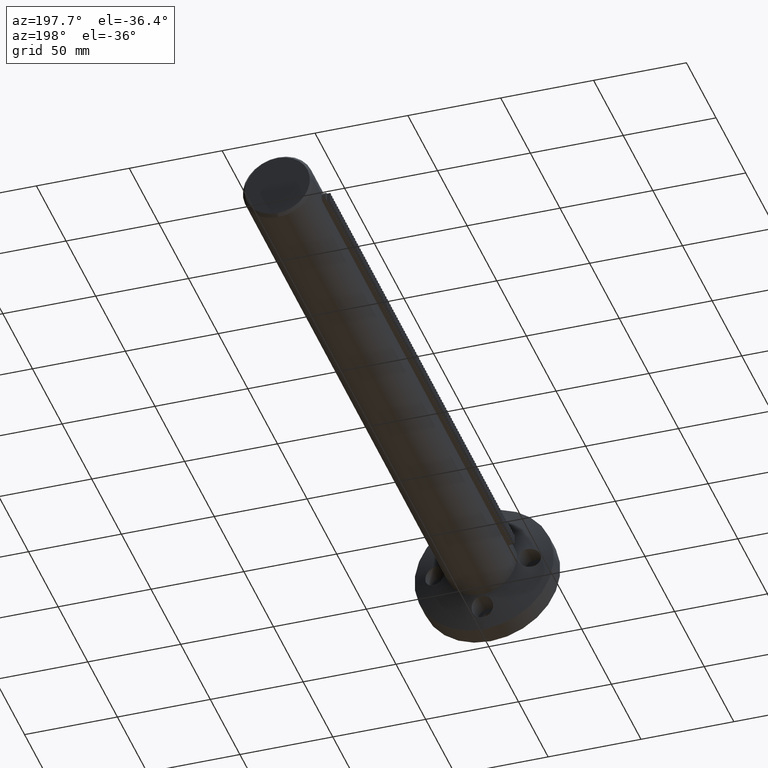
[diagram: clean part render]
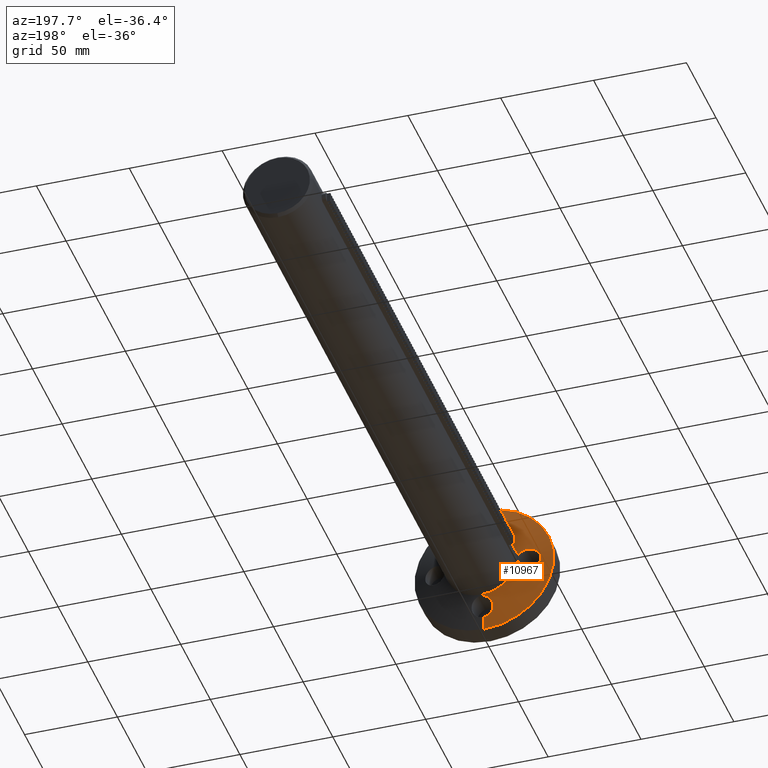
[diagram: same view with one face highlighted and labeled with its STEP entity id]
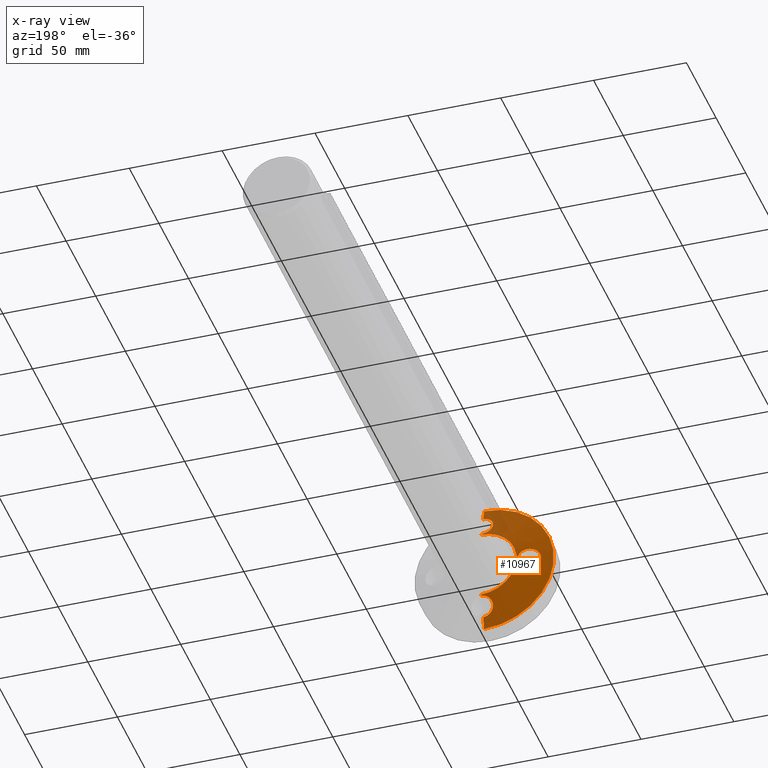
[diagram: x-ray of the same camera — body ghosted, the highlighted face saturated]
A machine part, auxiliary view. The second image highlights one B-rep face of the part: STEP entity #10967.
The next image is the same camera in x-ray: the body ghosted, the highlighted face saturated — about 10% of this face is hidden behind the body in this view.
In plain terms, the highlighted conical surface has half-angle 74.876 deg.
Its self-contained STEP definition (entity closure, byte-faithful):
#28 = CARTESIAN_POINT ( 'NONE',  ( -19.95347230017030800, 12.64867042255540700, -1.895494996095783400 ) ) ;
#90 = ORIENTED_EDGE ( 'NONE', *, *, #2800, .T. ) ;
#143 = CARTESIAN_POINT ( 'NONE',  ( -3.075752397821335000, 12.45378731034447900, -20.53298932240344900 ) ) ;
#149 = B_SPLINE_CURVE_WITH_KNOTS ( 'NONE', 3,
 ( #6070, #5871, #15079, #5944, #4479, #3026, #15015, #1563, #16751, #16556, #7477, #7613, #9160, #18296, #18158, #28, #9019, #19694, #10560, #1431, #2964, #7812, #15420, #12553, #7955, #3295, #18492, #4687, #1892, #1689, #18424, #6194, #12350, #7678, #1622, #9359, #18630, #12489, #13878, #3222, #13946, #4760, #18367 ),
 .UNSPECIFIED., .F., .F.,
 ( 4, 2, 2, 2, 2, 2, 2, 2, 2, 2, 2, 1, 2, 2, 2, 2, 2, 2, 2, 2, 2, 4 ),
 ( 0.004741575511497034400, 0.005889973265987618800, 0.007038371020478204100, 0.008186768774968787600, 0.009335166529459372800, 0.009909365406704666300, 0.01048356428394996200, 0.01163196203844055900, 0.01278035979293115600, 0.01392875754742175400, 0.01450295642466704900, 0.01507715530191234800, 0.01565135417915765000, 0.01622555305640294500, 0.01737395081089354900, 0.01794814968813884800, 0.01852234856538415000, 0.01967074631987475800, 0.02081914407436536200, 0.02139334295161066800, 0.02196754182885597400, 0.02311593958334657100 ),
 .UNSPECIFIED. ) ;
#344 = CARTESIAN_POINT ( 'NONE',  ( -28.87262617859321900, 10.16335467820008500, 4.603559824597359000 ) ) ;
#414 = CARTESIAN_POINT ( 'NONE',  ( -26.86885931063008200, 10.64856029313261100, 5.576022641360601100 ) ) ;
#542 = CARTESIAN_POINT ( 'NONE',  ( -25.58393667210177500, 10.97772347974293600, -5.754370000000260900 ) ) ;
#610 = CARTESIAN_POINT ( 'NONE',  ( -26.14291320192158700, 10.83244885893386600, 5.718186438531123600 ) ) ;
#949 = LINE ( 'NONE', #11947, #8793 ) ;
#1156 = CARTESIAN_POINT ( 'NONE',  ( -5.756150376179310700, 10.93651388904530600, 25.73989181270773600 ) ) ;
#1413 = CARTESIAN_POINT ( 'NONE',  ( 2.326828918379971000E-015, 12.92990217911026100, 19.00000000000000000 ) ) ;
#1431 = CARTESIAN_POINT ( 'NONE',  ( -19.64544418515184500, 12.75547251466001200, 0.1879525793661698800 ) ) ;
#1436 = AXIS2_PLACEMENT_3D ( 'NONE', #6864, #2237, #16023 ) ;
#1563 = CARTESIAN_POINT ( 'NONE',  ( -21.92657139124701600, 12.00986646094776900, -4.603135800176965600 ) ) ;
#1622 = CARTESIAN_POINT ( 'NONE',  ( -22.55511135971393700, 11.82024002597520100, 5.016072448647245000 ) ) ;
#1666 = CARTESIAN_POINT ( 'NONE',  ( -5.714301191538995200, 11.23205118161953600, -24.62780685320507600 ) ) ;
#1689 = CARTESIAN_POINT ( 'NONE',  ( -20.86433840456859600, 12.34524673169850000, 3.546314495437807900 ) ) ;
#1740 = EDGE_CURVE ( 'NONE', #16390, #9059, #149, .T. ) ;
#1867 = CARTESIAN_POINT ( 'NONE',  ( -30.95677500623524000, 9.688581294518639800, -1.507141923413092900 ) ) ;
#1892 = CARTESIAN_POINT ( 'NONE',  ( -20.74907108140542200, 12.38278649575518900, 3.393747928523390900 ) ) ;
#2006 = CARTESIAN_POINT ( 'NONE',  ( -31.15459912616185900, 9.644886826298394700, -0.3779521575366227000 ) ) ;
#2067 = CARTESIAN_POINT ( 'NONE',  ( 1.418599099528082900E-020, 12.75540758451566600, -19.64563000000000100 ) ) ;
#2139 = CARTESIAN_POINT ( 'NONE',  ( -28.87368419241867900, 10.16310566070364800, -4.602791431312179600 ) ) ;
#2237 = DIRECTION ( 'NONE',  ( -0.0000000000000000000, -1.000000000000000000, -0.0000000000000000000 ) ) ;
#2407 = AXIS2_PLACEMENT_3D ( 'NONE', #11591, #19264, #11662 ) ;
#2551 = CARTESIAN_POINT ( 'NONE',  ( -0.7708179309009198800, 9.653542958573366300, 31.11525967981001300 ) ) ;
#2623 = CARTESIAN_POINT ( 'NONE',  ( -1.518448574691598100, 12.68908716033633200, 19.83642146597813400 ) ) ;
#2686 = CARTESIAN_POINT ( 'NONE',  ( 2.405909194520083700E-015, 12.75540758451566600, 19.64563000000000100 ) ) ;
#2800 = EDGE_CURVE ( 'NONE', #12521, #9777, #12708, .T. ) ;
#2816 = CARTESIAN_POINT ( 'NONE',  ( -5.722492996937369000, 10.84056689456885900, 26.11122345109509300 ) ) ;
#2818 = DIRECTION ( 'NONE',  ( 0.0000000000000000000, -0.2609090251427748100, -0.9653633930282662400 ) ) ;
#2885 = CARTESIAN_POINT ( 'NONE',  ( -2.927141893527400700, 9.819735007610614000, 30.36870330217552900 ) ) ;
#2964 = CARTESIAN_POINT ( 'NONE',  ( -19.65512521684998900, 12.75208646065056700, 0.3822746239411310400 ) ) ;
#3026 = CARTESIAN_POINT ( 'NONE',  ( -22.88508818281968600, 11.72290219157065900, -5.188905567597802600 ) ) ;
#3133 = CARTESIAN_POINT ( 'NONE',  ( -1.518827042395980700, 12.68905820509806000, -19.83650505143506800 ) ) ;
#3192 = CARTESIAN_POINT ( 'NONE',  ( -2.914733102365205200, 12.48637190395591800, -20.43480470691907100 ) ) ;
#3222 = CARTESIAN_POINT ( 'NONE',  ( -24.11302308028955800, 11.37384780321148100, 5.611690893520988200 ) ) ;
#3236 = CARTESIAN_POINT ( 'NONE',  ( 4.592425496802575200E-015, 7.929902179110256600, 37.50000000000000700 ) ) ;
#3264 = CARTESIAN_POINT ( 'NONE',  ( -4.594134869386346400, 12.01337938585614900, -21.91517646247578500 ) ) ;
#3295 = CARTESIAN_POINT ( 'NONE',  ( -20.02487993505329600, 12.62443970590409000, 2.063343142485586100 ) ) ;
#3307 = ORIENTED_EDGE ( 'NONE', *, *, #8093, .T. ) ;
#3331 = CARTESIAN_POINT ( 'NONE',  ( -5.574150128685727300, 10.65597527231233200, -26.84097746251041300 ) ) ;
#3475 = CARTESIAN_POINT ( 'NONE',  ( -27.22307349294017700, 10.56055899927307500, 5.470651447457522700 ) ) ;
#3535 = CARTESIAN_POINT ( 'NONE',  ( -27.74081611866554600, 10.43397834407696200, 5.260044346421999300 ) ) ;
#3590 = CARTESIAN_POINT ( 'NONE',  ( -25.39999999999999900, 11.02620744427306800, 5.754369999999730600 ) ) ;
#3658 = CARTESIAN_POINT ( 'NONE',  ( -29.94072352253785100, 9.916704735262303700, 3.539813298197105300 ) ) ;
#4163 = LINE ( 'NONE', #17742, #18247 ) ;
#4287 = B_SPLINE_CURVE_WITH_KNOTS ( 'NONE', 3,
 ( #6307, #16922, #17054, #12320, #15321, #3133, #13718, #9469, #18464, #3192, #143, #10935, #13853, #12454, #3264, #4727, #7919, #4582, #18603, #1666, #13917, #9400, #7648, #10667, #3331, #12251, #15395, #6230, #13985, #10731, #4796, #15458, #16979, #9327, #7784, #4860, #15528, #15259, #10801, #6104, #16796, #18336 ),
 .UNSPECIFIED., .F., .F.,
 ( 4, 2, 2, 2, 2, 2, 2, 2, 2, 2, 2, 2, 2, 2, 2, 2, 2, 2, 2, 2, 4 ),
 ( 0.02270878399579354500, 0.02328091362428939800, 0.02385304325278524800, 0.02499730250977695200, 0.02556943213827280300, 0.02614156176676865600, 0.02728582102376036000, 0.02843008028075206400, 0.02957433953774376800, 0.03071859879473547200, 0.03186285805172717200, 0.03300711730871887900, 0.03357924693721473000, 0.03415137656571058700, 0.03529563582270228000, 0.03643989507969398100, 0.03758415433668567400, 0.03815628396518152400, 0.03872841359367737400, 0.03987267285066907500, 0.04101693210766078200 ),
 .UNSPECIFIED. ) ;
#4341 = CARTESIAN_POINT ( 'NONE',  ( -0.3817395810748420700, 12.75209910705306300, 19.65508902243628600 ) ) ;
#4364 = EDGE_CURVE ( 'NONE', #17474, #7840, #949, .T. ) ;
#4408 = CARTESIAN_POINT ( 'NONE',  ( -5.568519853675726800, 11.43191958974948700, 23.90246359193676900 ) ) ;
#4479 = CARTESIAN_POINT ( 'NONE',  ( -23.56994466176920300, 11.52561832520937900, -5.468127640852374700 ) ) ;
#4560 = CARTESIAN_POINT ( 'NONE',  ( 3.459627207591272700E-015, 12.92990217911026100, 19.00000000000000000 ) ) ;
#4582 = CARTESIAN_POINT ( 'NONE',  ( -5.461558042303144200, 11.53117543521089100, -23.55036504772973100 ) ) ;
#4687 = CARTESIAN_POINT ( 'NONE',  ( -20.42934861681018400, 12.48782957588433500, 2.923860764264216700 ) ) ;
#4727 = CARTESIAN_POINT ( 'NONE',  ( -5.003130569423333000, 11.82678840913885300, -22.53316292909833500 ) ) ;
#4760 = CARTESIAN_POINT ( 'NONE',  ( -25.02891533343849100, 11.12402184748938100, 5.754369999999730600 ) ) ;
#4796 = CARTESIAN_POINT ( 'NONE',  ( -4.377428156117784600, 10.09755874217612300, -29.15441383409086700 ) ) ;
#4860 = CARTESIAN_POINT ( 'NONE',  ( -2.586522192266736300, 9.780536856712888700, -30.54382960680144900 ) ) ;
#4937 = CARTESIAN_POINT ( 'NONE',  ( -29.56958435360552100, 10.00164258227850300, 3.970297522726241800 ) ) ;
#5133 = CARTESIAN_POINT ( 'NONE',  ( -30.96368252480537800, 9.687043963652046200, 1.517547882564642700 ) ) ;
#5195 = CARTESIAN_POINT ( 'NONE',  ( -30.37832416249954200, 9.817569257361960000, -2.911157041352343100 ) ) ;
#5202 = EDGE_LOOP ( 'NONE', ( #7422, #90, #3307, #17872, #17880, #17718, #6144, #17232 ) ) ;
#5614 = VERTEX_POINT ( 'NONE', #10992 ) ;
#5670 = CARTESIAN_POINT ( 'NONE',  ( -4.593333763342141800, 12.01377151967934300, 21.91386697410212000 ) ) ;
#5858 = CARTESIAN_POINT ( 'NONE',  ( -5.199240815103141100, 10.39650493591300800, 27.89387508774452900 ) ) ;
#5871 = CARTESIAN_POINT ( 'NONE',  ( -25.02943045253588000, 11.12388606697444600, -5.754370000000263600 ) ) ;
#5944 = CARTESIAN_POINT ( 'NONE',  ( -23.92722058988818300, 11.42499082222139600, -5.575245475863075000 ) ) ;
#6070 = CARTESIAN_POINT ( 'NONE',  ( -25.39999999999999900, 11.02620744427303600, -5.754370000000262700 ) ) ;
#6104 = CARTESIAN_POINT ( 'NONE',  ( -0.7705292459610378900, 9.653532032943335400, -31.11530916696301900 ) ) ;
#6144 = ORIENTED_EDGE ( 'NONE', *, *, #17301, .F. ) ;
#6194 = CARTESIAN_POINT ( 'NONE',  ( -21.23461394579140600, 12.22635217635233600, 3.974586023415013400 ) ) ;
#6230 = CARTESIAN_POINT ( 'NONE',  ( -5.200154014713156400, 10.39699765668276400, -27.89184668191067500 ) ) ;
#6252 = VECTOR ( 'NONE', #15060, 1000.000000000000200 ) ;
#6307 = CARTESIAN_POINT ( 'NONE',  ( 1.418599099528082900E-020, 12.75540758451566600, -19.64563000000000100 ) ) ;
#6414 = DIRECTION ( 'NONE',  ( 0.0000000000000000000, 0.0000000000000000000, -1.000000000000000000 ) ) ;
#6428 = CONICAL_SURFACE ( 'NONE', #18541, 19.00000000000000000, 1.306832603169191900 ) ;
#6446 = CARTESIAN_POINT ( 'NONE',  ( -30.77988225447638400, 9.727848023739552400, -2.050744658517016400 ) ) ;
#6511 = CARTESIAN_POINT ( 'NONE',  ( -30.85191515310240000, 9.711783492303361200, 1.880363171192810600 ) ) ;
#6704 = CARTESIAN_POINT ( 'NONE',  ( -27.91353127826444000, 10.39175342526543700, -5.189746723953865300 ) ) ;
#6864 = CARTESIAN_POINT ( 'NONE',  ( 0.0000000000000000000, 7.929902179110256600, 0.0000000000000000000 ) ) ;
#6895 = FACE_BOUND ( 'NONE', #9824, .T. ) ;
#6977 = LINE ( 'NONE', #1413, #6252 ) ;
#6995 = CARTESIAN_POINT ( 'NONE',  ( -1.518663156022129300, 9.687094568041558800, 30.96345357748238300 ) ) ;
#7388 = VERTEX_POINT ( 'NONE', #12713 ) ;
#7422 = ORIENTED_EDGE ( 'NONE', *, *, #16019, .F. ) ;
#7477 = CARTESIAN_POINT ( 'NONE',  ( -21.10941564614566000, 12.26629426477075300, -3.839192187823436100 ) ) ;
#7613 = CARTESIAN_POINT ( 'NONE',  ( -20.86669000448337000, 12.34448404128036500, -3.549311375060379100 ) ) ;
#7648 = CARTESIAN_POINT ( 'NONE',  ( -5.722838304620729800, 10.84142635349568600, -26.10788874319223400 ) ) ;
#7678 = CARTESIAN_POINT ( 'NONE',  ( -21.92609624181705600, 12.01000775040494900, 4.602865071299534700 ) ) ;
#7754 = CARTESIAN_POINT ( 'NONE',  ( 0.0000000000000000000, 7.929902179110256600, -37.50000000000000700 ) ) ;
#7784 = CARTESIAN_POINT ( 'NONE',  ( -2.921132989650071700, 9.821481445083785300, -30.36145766198537600 ) ) ;
#7812 = CARTESIAN_POINT ( 'NONE',  ( -19.69344061106923900, 12.73872290810898300, 0.7647876194004669100 ) ) ;
#7840 = VERTEX_POINT ( 'NONE', #7754 ) ;
#7919 = CARTESIAN_POINT ( 'NONE',  ( -5.179595510302511300, 11.72851153787452500, -22.86592106362882900 ) ) ;
#7955 = CARTESIAN_POINT ( 'NONE',  ( -19.95846068258650900, 12.64716136667686000, 1.881305422319691400 ) ) ;
#8003 = CARTESIAN_POINT ( 'NONE',  ( -29.16510203805460900, 10.09507370205823300, -4.368080796642289900 ) ) ;
#8035 = CARTESIAN_POINT ( 'NONE',  ( 0.0000000000000000000, 12.92990217911026100, -19.00000000000000000 ) ) ;
#8073 = CARTESIAN_POINT ( 'NONE',  ( -26.86952261835518000, 10.64839099228358600, -5.575919591273549100 ) ) ;
#8090 = B_SPLINE_CURVE_WITH_KNOTS ( 'NONE', 3,
 ( #11677, #16024, #2551, #6995, #17682, #10087, #2885, #8874, #13278, #11946, #11742, #17817, #12012, #13532, #5858, #15002, #13403, #2816, #1156, #13476, #16607, #4408, #8942, #11874, #19488, #5670, #15067, #10288, #8746, #16352, #19415, #8677, #2623, #10349, #19614, #4341, #14866, #2686 ),
 .UNSPECIFIED., .F., .F.,
 ( 4, 2, 2, 2, 2, 2, 2, 2, 2, 2, 2, 2, 2, 2, 2, 2, 2, 2, 4 ),
 ( 0.02298047867643270700, 0.02412491496554741000, 0.02526935125466211000, 0.02641378754377680900, 0.02698600568833416400, 0.02755822383289151600, 0.02870266012200622900, 0.02984709641112094300, 0.03099153270023565600, 0.03213596898935037300, 0.03328040527846508300, 0.03442484156757980000, 0.03556927785669451000, 0.03671371414580922700, 0.03785815043492393700, 0.03900258672403865400, 0.04014702301315337100, 0.04071924115771072300, 0.04129145930226808100 ),
 .UNSPECIFIED. ) ;
#8093 = EDGE_CURVE ( 'NONE', #9777, #19630, #4163, .T. ) ;
#8107 = CARTESIAN_POINT ( 'NONE',  ( 0.0000000000000000000, 12.92990217911026100, 0.0000000000000000000 ) ) ;
#8134 = CARTESIAN_POINT ( 'NONE',  ( -25.76838471537888300, 10.92910472261473300, 5.754369999999731500 ) ) ;
#8200 = CARTESIAN_POINT ( 'NONE',  ( -31.11727720211246200, 9.653098205973735800, -0.7564325368763944500 ) ) ;
#8677 = CARTESIAN_POINT ( 'NONE',  ( -1.880658123992036600, 12.65041336983481000, 19.94839702383207200 ) ) ;
#8746 = CARTESIAN_POINT ( 'NONE',  ( -3.540150737253165800, 12.35027766850217500, 20.84795517425548200 ) ) ;
#8793 = VECTOR ( 'NONE', #2818, 1000.000000000000200 ) ;
#8874 = CARTESIAN_POINT ( 'NONE',  ( -3.396559826384286700, 9.892127748232532300, 30.04887136420674700 ) ) ;
#8942 = CARTESIAN_POINT ( 'NONE',  ( -5.461298168521530300, 11.53131902488248500, 23.54987918984942400 ) ) ;
#9019 = CARTESIAN_POINT ( 'NONE',  ( -19.83768667214973300, 12.68865001789923300, -1.523060983303067100 ) ) ;
#9059 = VERTEX_POINT ( 'NONE', #3590 ) ;
#9160 = CARTESIAN_POINT ( 'NONE',  ( -20.75128604244272500, 12.38206332496647000, -3.396771504223494300 ) ) ;
#9327 = CARTESIAN_POINT ( 'NONE',  ( -3.082909147108485300, 9.843766449274486500, -30.26253376775115500 ) ) ;
#9359 = CARTESIAN_POINT ( 'NONE',  ( -22.88410637414068900, 11.72318735379248400, 5.188465582660892700 ) ) ;
#9400 = CARTESIAN_POINT ( 'NONE',  ( -5.756161052804356100, 10.93648122775640300, -25.74001341397887500 ) ) ;
#9469 = CARTESIAN_POINT ( 'NONE',  ( -2.407845867660814300, 12.57512153005596100, -20.17015620040562900 ) ) ;
#9539 = CARTESIAN_POINT ( 'NONE',  ( -29.95006725020060400, 9.914480262619299800, -3.543364898651331100 ) ) ;
#9604 = CARTESIAN_POINT ( 'NONE',  ( -25.76833528357574500, 10.92961850390737100, -5.745571951246879500 ) ) ;
#9677 = CARTESIAN_POINT ( 'NONE',  ( -26.32346610855985600, 10.78671385244593100, -5.682814876675992700 ) ) ;
#9731 = CARTESIAN_POINT ( 'NONE',  ( -30.56000741632685800, 9.776875357167654100, -2.575023898648923100 ) ) ;
#9777 = VERTEX_POINT ( 'NONE', #8035 ) ;
#9824 = EDGE_LOOP ( 'NONE', ( #11301, #12691 ) ) ;
#9925 = CARTESIAN_POINT ( 'NONE',  ( -25.39999999999999900, 11.02620744427303600, -5.754370000000262700 ) ) ;
#10087 = CARTESIAN_POINT ( 'NONE',  ( -2.592340906262502500, 9.778717229792295700, 30.55176804959327400 ) ) ;
#10232 = EDGE_CURVE ( 'NONE', #5614, #7388, #8090, .T. ) ;
#10288 = CARTESIAN_POINT ( 'NONE',  ( -3.827927368724192400, 12.27296920380357500, 21.08705128197694400 ) ) ;
#10349 = CARTESIAN_POINT ( 'NONE',  ( -0.9561196299232760400, 12.72863407020232500, 19.72239585119713100 ) ) ;
#10560 = CARTESIAN_POINT ( 'NONE',  ( -19.64600981993534400, 12.75527486227349700, -0.3927211608668786900 ) ) ;
#10667 = CARTESIAN_POINT ( 'NONE',  ( -5.618339704016017700, 10.70199991148573700, -26.65771050975384800 ) ) ;
#10731 = CARTESIAN_POINT ( 'NONE',  ( -4.613996522580846400, 10.16643575849831800, -28.85944601618943000 ) ) ;
#10801 = CARTESIAN_POINT ( 'NONE',  ( -1.518687985690091400, 9.687093656683853000, -30.96345764745031200 ) ) ;
#10935 = CARTESIAN_POINT ( 'NONE',  ( -3.541966175736621600, 12.34982136499790100, -20.84935869207338400 ) ) ;
#10967 = ADVANCED_FACE ( 'NONE', ( #10999, #6895 ), #6428, .T. ) ;
#10992 = CARTESIAN_POINT ( 'NONE',  ( -1.744298769855210700E-013, 9.644937314244925700, 31.15437000000212500 ) ) ;
#10999 = FACE_OUTER_BOUND ( 'NONE', #5202, .T. ) ;
#11003 = CARTESIAN_POINT ( 'NONE',  ( -29.69882504963773000, 9.971972257106580500, 3.829954501926698300 ) ) ;
#11069 = CARTESIAN_POINT ( 'NONE',  ( -28.40511113777033000, 10.27416639474292900, 4.910892131888684500 ) ) ;
#11133 = B_SPLINE_CURVE_WITH_KNOTS ( 'NONE', 3,
 ( #12662, #8134, #610, #414, #3475, #3535, #18671, #12595, #11069, #344, #14264, #4937, #11003, #3658, #15667, #14199, #17119, #15598, #6511, #5133, #15793, #17325, #2006, #8200, #17195, #1867, #14330, #6446, #9731, #5195, #9539, #11259, #8003, #2139, #15865, #6704, #15733, #8073, #9677, #18740, #9604, #542, #11201 ),
 .UNSPECIFIED., .F., .F.,
 ( 4, 2, 2, 2, 2, 2, 2, 1, 2, 2, 2, 2, 2, 2, 2, 2, 2, 2, 2, 2, 2, 4 ),
 ( 0.02311593958334657100, 0.02425598178409228700, 0.02539602398483800000, 0.02596604508521085900, 0.02653606618558371600, 0.02767610838632943200, 0.02824612948670228800, 0.02881615058707514400, 0.02938617168744800400, 0.02995619278782086000, 0.03109623498856657600, 0.03223627718931229600, 0.03337631939005801500, 0.03394634049043088200, 0.03451636159080374200, 0.03565640379154945400, 0.03679644599229517400, 0.03793648819304089300, 0.03907653039378661300, 0.04021657259453232500, 0.04078659369490519200, 0.04135661479527805200 ),
 .UNSPECIFIED. ) ;
#11201 = CARTESIAN_POINT ( 'NONE',  ( -25.39999999999999900, 11.02620744427303600, -5.754370000000262700 ) ) ;
#11259 = CARTESIAN_POINT ( 'NONE',  ( -29.70497052036017400, 9.970370530189400800, -3.837102034320662100 ) ) ;
#11301 = ORIENTED_EDGE ( 'NONE', *, *, #14566, .T. ) ;
#11472 = DIRECTION ( 'NONE',  ( 0.0000000000000000000, -0.2609090251427748100, -0.9653633930282662400 ) ) ;
#11591 = CARTESIAN_POINT ( 'NONE',  ( 0.0000000000000000000, 12.92990217911026100, 0.0000000000000000000 ) ) ;
#11662 = DIRECTION ( 'NONE',  ( 0.0000000000000000000, 0.0000000000000000000, -1.000000000000000000 ) ) ;
#11677 = CARTESIAN_POINT ( 'NONE',  ( -1.744298769855210700E-013, 9.644937314244925700, 31.15437000000212500 ) ) ;
#11742 = CARTESIAN_POINT ( 'NONE',  ( -3.980380497543104300, 10.00385945630323000, 29.55995039585469200 ) ) ;
#11874 = CARTESIAN_POINT ( 'NONE',  ( -5.180511001410588200, 11.72790901438646000, 22.86799872395122800 ) ) ;
#11946 = CARTESIAN_POINT ( 'NONE',  ( -3.839604159915898300, 9.973932705628751400, 29.69027050509022600 ) ) ;
#11947 = CARTESIAN_POINT ( 'NONE',  ( 0.0000000000000000000, 12.92990217911026100, -19.00000000000000000 ) ) ;
#12012 = CARTESIAN_POINT ( 'NONE',  ( -4.612474621834036400, 10.16605822047774200, 28.86108446184748600 ) ) ;
#12185 = LINE ( 'NONE', #15698, #19356 ) ;
#12251 = CARTESIAN_POINT ( 'NONE',  ( -5.469129791394491800, 10.56687051492869000, -27.19893997383772800 ) ) ;
#12320 = CARTESIAN_POINT ( 'NONE',  ( -0.7642325083010952400, 12.73874893961582600, -19.69336590353457700 ) ) ;
#12350 = CARTESIAN_POINT ( 'NONE',  ( -21.63506316733489500, 12.10001201667129900, 4.367840256675313200 ) ) ;
#12454 = CARTESIAN_POINT ( 'NONE',  ( -4.360462471592010800, 12.10273302178689500, -21.62630149163612700 ) ) ;
#12489 = CARTESIAN_POINT ( 'NONE',  ( -23.57336600615747500, 11.52519848922205800, 5.459935315379972600 ) ) ;
#12521 = VERTEX_POINT ( 'NONE', #4560 ) ;
#12553 = CARTESIAN_POINT ( 'NONE',  ( -19.84512942570686200, 12.68611203047290900, 1.514289647940129300 ) ) ;
#12595 = CARTESIAN_POINT ( 'NONE',  ( -28.24419641929051400, 10.31256743950343600, 5.005849333723361400 ) ) ;
#12662 = CARTESIAN_POINT ( 'NONE',  ( -25.39999999999999900, 11.02620744427306800, 5.754369999999730600 ) ) ;
#12691 = ORIENTED_EDGE ( 'NONE', *, *, #1740, .T. ) ;
#12708 = CIRCLE ( 'NONE', #2407, 19.00000000000000000 ) ;
#12713 = CARTESIAN_POINT ( 'NONE',  ( 2.405909194520083700E-015, 12.75540758451566600, 19.64563000000000100 ) ) ;
#13278 = CARTESIAN_POINT ( 'NONE',  ( -3.547791225546967500, 9.918109242755708300, 29.93455163512583500 ) ) ;
#13403 = CARTESIAN_POINT ( 'NONE',  ( -5.582211560517190900, 10.65419965300390000, 26.84626380408728600 ) ) ;
#13476 = CARTESIAN_POINT ( 'NONE',  ( -5.752444361264896800, 11.13115098574842000, 25.00228468965018200 ) ) ;
#13532 = CARTESIAN_POINT ( 'NONE',  ( -5.023479423537804000, 10.31529582501310700, 28.23172778889453500 ) ) ;
#13718 = CARTESIAN_POINT ( 'NONE',  ( -1.881662487784274500, 12.65031748574038200, -19.94867212932178200 ) ) ;
#13853 = CARTESIAN_POINT ( 'NONE',  ( -3.831762223984440700, 12.27187326393590500, -21.09047199138515400 ) ) ;
#13878 = CARTESIAN_POINT ( 'NONE',  ( -23.93037489320400000, 11.42468655417161300, 5.566658552585138000 ) ) ;
#13917 = CARTESIAN_POINT ( 'NONE',  ( -5.752432103092853100, 11.13126648404797200, -25.00184916574988100 ) ) ;
#13946 = CARTESIAN_POINT ( 'NONE',  ( -24.66076204070127200, 11.22309989156756100, 5.718805998984052500 ) ) ;
#13985 = CARTESIAN_POINT ( 'NONE',  ( -5.028276268879293000, 10.31721533937672100, -28.22367994169708500 ) ) ;
#14199 = CARTESIAN_POINT ( 'NONE',  ( -30.36432049019501600, 9.820837397351132500, 2.916221764526876600 ) ) ;
#14264 = CARTESIAN_POINT ( 'NONE',  ( -29.16414654147493800, 10.09529548499982500, 4.368942998804302000 ) ) ;
#14330 = CARTESIAN_POINT ( 'NONE',  ( -30.84465476289833000, 9.713452636516942500, -1.872153775756345300 ) ) ;
#14566 = EDGE_CURVE ( 'NONE', #9059, #16390, #11133, .T. ) ;
#14866 = CARTESIAN_POINT ( 'NONE',  ( -0.1907362564407335500, 12.75540758451566400, 19.64562999999999000 ) ) ;
#15002 = CARTESIAN_POINT ( 'NONE',  ( -5.477365115227233800, 10.56557806033048100, 27.20277269815109400 ) ) ;
#15015 = CARTESIAN_POINT ( 'NONE',  ( -22.55374978273039200, 11.82064874488459700, -5.015219356684951000 ) ) ;
#15060 = DIRECTION ( 'NONE',  ( 1.182229189286094700E-016, -0.2609090251427748100, 0.9653633930282662400 ) ) ;
#15067 = CARTESIAN_POINT ( 'NONE',  ( -4.357316279033483400, 12.10386872289812400, 21.62265312302478600 ) ) ;
#15079 = CARTESIAN_POINT ( 'NONE',  ( -24.66072571301491900, 11.22310318877365100, -5.718908535339917200 ) ) ;
#15259 = CARTESIAN_POINT ( 'NONE',  ( -1.882517499167655900, 9.711932934953690500, -30.85124002361958900 ) ) ;
#15321 = CARTESIAN_POINT ( 'NONE',  ( -0.9560785612837087200, 12.72863812734423500, -19.72238410385273600 ) ) ;
#15395 = CARTESIAN_POINT ( 'NONE',  ( -5.408158078167534900, 10.52353814833606000, -27.37462203723848800 ) ) ;
#15420 = CARTESIAN_POINT ( 'NONE',  ( -19.75067251350985100, 12.71878129451586800, 1.143384692319903400 ) ) ;
#15458 = CARTESIAN_POINT ( 'NONE',  ( -3.845071159015781800, 9.971961621981750000, -29.69801445805977000 ) ) ;
#15528 = CARTESIAN_POINT ( 'NONE',  ( -2.412644127409551100, 9.761786498109696500, -30.62768604351843000 ) ) ;
#15598 = CARTESIAN_POINT ( 'NONE',  ( -30.62922423339251000, 9.761442924560407500, 2.409269726001226800 ) ) ;
#15667 = CARTESIAN_POINT ( 'NONE',  ( -30.16752645709770400, 9.865166602337382100, 3.238804105058154200 ) ) ;
#15698 = CARTESIAN_POINT ( 'NONE',  ( 2.326828918379971000E-015, 12.92990217911026100, 19.00000000000000000 ) ) ;
#15733 = CARTESIAN_POINT ( 'NONE',  ( -27.22401631309676200, 10.56032703201313600, -5.470308495428810100 ) ) ;
#15793 = CARTESIAN_POINT ( 'NONE',  ( -31.11504580998200000, 9.653590230592417500, 0.7718589265590122300 ) ) ;
#15865 = CARTESIAN_POINT ( 'NONE',  ( -28.24978141950039000, 10.31098132552447300, -5.013074574539140300 ) ) ;
#16019 = EDGE_CURVE ( 'NONE', #12521, #7388, #6977, .T. ) ;
#16023 = DIRECTION ( 'NONE',  ( 0.0000000000000000000, 0.0000000000000000000, -1.000000000000000000 ) ) ;
#16024 = CARTESIAN_POINT ( 'NONE',  ( -0.3829177907678269500, 9.644937314245398200, 31.15436999999999300 ) ) ;
#16241 = CIRCLE ( 'NONE', #1436, 37.50000000000000000 ) ;
#16352 = CARTESIAN_POINT ( 'NONE',  ( -2.918551779569435100, 12.48879138068196300, 20.42648666956311800 ) ) ;
#16390 = VERTEX_POINT ( 'NONE', #9925 ) ;
#16556 = CARTESIAN_POINT ( 'NONE',  ( -21.23684401226846700, 12.22564404073887100, -3.976904803782815200 ) ) ;
#16607 = CARTESIAN_POINT ( 'NONE',  ( -5.714938900724813900, 11.23102447126571600, 24.63155871061091100 ) ) ;
#16751 = CARTESIAN_POINT ( 'NONE',  ( -21.63671226198518800, 12.09950095581150700, -4.369199182498378200 ) ) ;
#16796 = CARTESIAN_POINT ( 'NONE',  ( -0.3823681337739905400, 9.644937314245396500, -31.15437000000000700 ) ) ;
#16922 = CARTESIAN_POINT ( 'NONE',  ( -0.1907097826155736400, 12.75540758451566800, -19.64563000000000400 ) ) ;
#16979 = CARTESIAN_POINT ( 'NONE',  ( -3.551988008225452000, 9.916079035416292000, -29.94305103494383500 ) ) ;
#17054 = CARTESIAN_POINT ( 'NONE',  ( -0.3816956584644949400, 12.75210002976730200, -19.65508638341748300 ) ) ;
#17119 = CARTESIAN_POINT ( 'NONE',  ( -30.54576564656090900, 9.780103538789802500, 2.582619449308041700 ) ) ;
#17195 = CARTESIAN_POINT ( 'NONE',  ( -31.00427390875326900, 9.678072066006818000, -1.319680539184730800 ) ) ;
#17228 = DIRECTION ( 'NONE',  ( 1.182229189286094700E-016, -0.2609090251427748100, 0.9653633930282662400 ) ) ;
#17232 = ORIENTED_EDGE ( 'NONE', *, *, #10232, .T. ) ;
#17301 = EDGE_CURVE ( 'NONE', #5614, #18439, #12185, .T. ) ;
#17325 = CARTESIAN_POINT ( 'NONE',  ( -31.15413877831565900, 9.644988263940742700, 0.3848972019811843200 ) ) ;
#17474 = VERTEX_POINT ( 'NONE', #19012 ) ;
#17502 = EDGE_CURVE ( 'NONE', #18439, #7840, #16241, .T. ) ;
#17682 = CARTESIAN_POINT ( 'NONE',  ( -1.883074382312546900, 9.711953571349093700, 30.85114449283542400 ) ) ;
#17718 = ORIENTED_EDGE ( 'NONE', *, *, #17502, .F. ) ;
#17742 = CARTESIAN_POINT ( 'NONE',  ( 0.0000000000000000000, 12.92990217911026100, -19.00000000000000000 ) ) ;
#17817 = CARTESIAN_POINT ( 'NONE',  ( -4.377615132201736300, 10.09765374520389400, 29.15401495313842500 ) ) ;
#17872 = ORIENTED_EDGE ( 'NONE', *, *, #19568, .T. ) ;
#17880 = ORIENTED_EDGE ( 'NONE', *, *, #4364, .T. ) ;
#18158 = CARTESIAN_POINT ( 'NONE',  ( -20.25048884205700300, 12.54786586465800500, -2.596170275512955000 ) ) ;
#18247 = VECTOR ( 'NONE', #11472, 1000.000000000000200 ) ;
#18296 = CARTESIAN_POINT ( 'NONE',  ( -20.43154090667130500, 12.48710036536452100, -2.927538964998427600 ) ) ;
#18336 = CARTESIAN_POINT ( 'NONE',  ( 3.459352284620442000E-024, 9.644937314245396500, -31.15436999999999700 ) ) ;
#18367 = CARTESIAN_POINT ( 'NONE',  ( -25.39999999999999900, 11.02620744427306800, 5.754369999999730600 ) ) ;
#18424 = CARTESIAN_POINT ( 'NONE',  ( -21.10709024670057600, 12.26703828559214300, 3.836599856494048200 ) ) ;
#18439 = VERTEX_POINT ( 'NONE', #3236 ) ;
#18464 = CARTESIAN_POINT ( 'NONE',  ( -2.581047904696768000, 12.54701859051828400, -20.25344532039958200 ) ) ;
#18492 = CARTESIAN_POINT ( 'NONE',  ( -20.24801028527417700, 12.54869860172852300, 2.591501926220142400 ) ) ;
#18541 = AXIS2_PLACEMENT_3D ( 'NONE', #8107, #18638, #6414 ) ;
#18603 = CARTESIAN_POINT ( 'NONE',  ( -5.568459962926201700, 11.43184929740477800, -23.90274450915384100 ) ) ;
#18630 = CARTESIAN_POINT ( 'NONE',  ( -23.39842872330629200, 11.57502506995000900, 5.398218868919781400 ) ) ;
#18638 = DIRECTION ( 'NONE',  ( -0.0000000000000000000, -1.000000000000000000, -0.0000000000000000000 ) ) ;
#18671 = CARTESIAN_POINT ( 'NONE',  ( -27.91204685004991500, 10.39247130223604300, 5.180502045805776700 ) ) ;
#18740 = CARTESIAN_POINT ( 'NONE',  ( -26.13806511410924900, 10.83411952714143200, -5.709862328937238600 ) ) ;
#19012 = CARTESIAN_POINT ( 'NONE',  ( 3.459352284620442000E-024, 9.644937314245396500, -31.15436999999999700 ) ) ;
#19264 = DIRECTION ( 'NONE',  ( -0.0000000000000000000, -1.000000000000000000, -0.0000000000000000000 ) ) ;
#19356 = VECTOR ( 'NONE', #17228, 1000.000000000000200 ) ;
#19415 = CARTESIAN_POINT ( 'NONE',  ( -2.580451533151293800, 12.55050214349306300, 20.24266349031232100 ) ) ;
#19488 = CARTESIAN_POINT ( 'NONE',  ( -5.004863522780291300, 11.82597108988905700, 22.53588064947388500 ) ) ;
#19568 = EDGE_CURVE ( 'NONE', #19630, #17474, #4287, .T. ) ;
#19614 = CARTESIAN_POINT ( 'NONE',  ( -0.7642926998648570400, 12.73874622842848600, 19.69337368344266900 ) ) ;
#19630 = VERTEX_POINT ( 'NONE', #2067 ) ;
#19694 = CARTESIAN_POINT ( 'NONE',  ( -19.68504762115423600, 12.74158572064548700, -0.7735396716171653000 ) ) ;